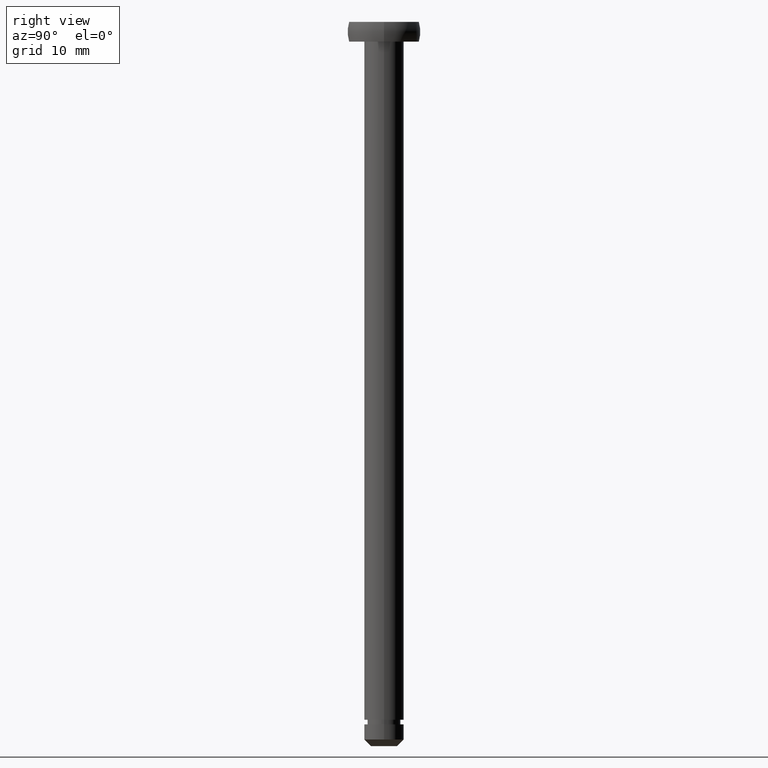
[diagram: clean part render]
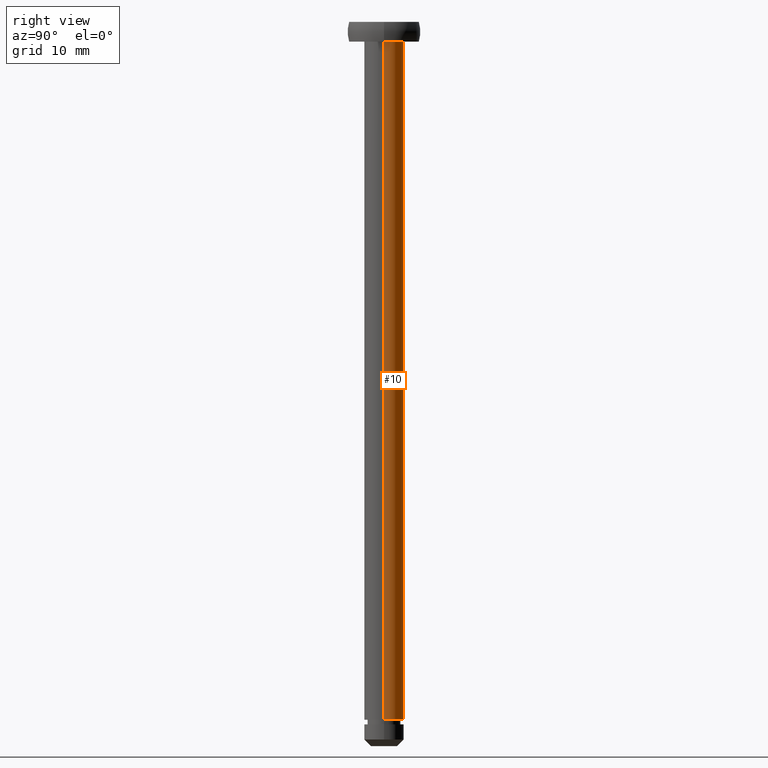
[diagram: same view with one face highlighted and labeled with its STEP entity id]
A machine part, right view. The second image highlights one B-rep face of the part: STEP entity #10.
In plain terms, the highlighted cylindrical surface (edge-blend (fillet) strip) has radius 3 mm, axis along (0, 0, -1).
Its self-contained STEP definition (entity closure, byte-faithful):
#9 = EDGE_CURVE ( 'NONE', #442, #414, #404, .T. ) ;
#10 = ADVANCED_FACE ( 'NONE', ( #445 ), #446, .T. ) ;
#38 = ORIENTED_EDGE ( 'NONE', *, *, #72, .F. ) ;
#60 = EDGE_LOOP ( 'NONE', ( #206, #159, #312, #38 ) ) ;
#64 = DIRECTION ( 'NONE',  ( -1.000000000000000000, 0.0000000000000000000, 0.0000000000000000000 ) ) ;
#72 = EDGE_CURVE ( 'NONE', #442, #108, #343, .T. ) ;
#75 = DIRECTION ( 'NONE',  ( -1.000000000000000000, 0.0000000000000000000, 0.0000000000000000000 ) ) ;
#99 = CARTESIAN_POINT ( 'NONE',  ( 3.000000000000000000, 3.673940397442059900E-016, -106.0000000180433900 ) ) ;
#105 = VERTEX_POINT ( 'NONE', #99 ) ;
#108 = VERTEX_POINT ( 'NONE', #418 ) ;
#127 = CARTESIAN_POINT ( 'NONE',  ( -3.000000000000000000, 0.0000000000000000000, -3.000000018043495100 ) ) ;
#129 = CARTESIAN_POINT ( 'NONE',  ( 3.000000000000000000, 3.673940397442059900E-016, -6.132507950209293800E-014 ) ) ;
#131 = VECTOR ( 'NONE', #295, 1000.000000000000000 ) ;
#137 = DIRECTION ( 'NONE',  ( 0.0000000000000000000, 0.0000000000000000000, -1.000000000000000000 ) ) ;
#140 = DIRECTION ( 'NONE',  ( -1.000000000000000000, 0.0000000000000000000, 0.0000000000000000000 ) ) ;
#141 = VECTOR ( 'NONE', #216, 1000.000000000000000 ) ;
#144 = DIRECTION ( 'NONE',  ( 0.0000000000000000000, 0.0000000000000000000, -1.000000000000000000 ) ) ;
#146 = CARTESIAN_POINT ( 'NONE',  ( -3.000000000000000000, 0.0000000000000000000, -6.132507950209293800E-014 ) ) ;
#158 = EDGE_CURVE ( 'NONE', #108, #105, #270, .T. ) ;
#159 = ORIENTED_EDGE ( 'NONE', *, *, #339, .T. ) ;
#206 = ORIENTED_EDGE ( 'NONE', *, *, #9, .T. ) ;
#216 = DIRECTION ( 'NONE',  ( 0.0000000000000000000, 0.0000000000000000000, -1.000000000000000000 ) ) ;
#220 = LINE ( 'NONE', #129, #131 ) ;
#256 = CARTESIAN_POINT ( 'NONE',  ( 0.0000000000000000000, 0.0000000000000000000, -6.132507950209293800E-014 ) ) ;
#270 = CIRCLE ( 'NONE', #274, 3.000000000000000000 ) ;
#272 = CARTESIAN_POINT ( 'NONE',  ( 0.0000000000000000000, 0.0000000000000000000, -3.000000018043495100 ) ) ;
#274 = AXIS2_PLACEMENT_3D ( 'NONE', #422, #144, #140 ) ;
#276 = DIRECTION ( 'NONE',  ( 0.0000000000000000000, 0.0000000000000000000, -1.000000000000000000 ) ) ;
#295 = DIRECTION ( 'NONE',  ( 0.0000000000000000000, 0.0000000000000000000, -1.000000000000000000 ) ) ;
#312 = ORIENTED_EDGE ( 'NONE', *, *, #158, .F. ) ;
#331 = AXIS2_PLACEMENT_3D ( 'NONE', #272, #276, #64 ) ;
#339 = EDGE_CURVE ( 'NONE', #414, #105, #220, .T. ) ;
#343 = LINE ( 'NONE', #146, #141 ) ;
#364 = CARTESIAN_POINT ( 'NONE',  ( 3.000000000000000000, 3.673940397442059900E-016, -3.000000018043495100 ) ) ;
#404 = CIRCLE ( 'NONE', #331, 3.000000000000000000 ) ;
#409 = AXIS2_PLACEMENT_3D ( 'NONE', #256, #137, #75 ) ;
#414 = VERTEX_POINT ( 'NONE', #364 ) ;
#418 = CARTESIAN_POINT ( 'NONE',  ( -3.000000000000000000, 0.0000000000000000000, -106.0000000180433900 ) ) ;
#422 = CARTESIAN_POINT ( 'NONE',  ( 0.0000000000000000000, 0.0000000000000000000, -106.0000000180433900 ) ) ;
#442 = VERTEX_POINT ( 'NONE', #127 ) ;
#445 = FACE_OUTER_BOUND ( 'NONE', #60, .T. ) ;
#446 = CYLINDRICAL_SURFACE ( 'NONE', #409, 3.000000000000000000 ) ;